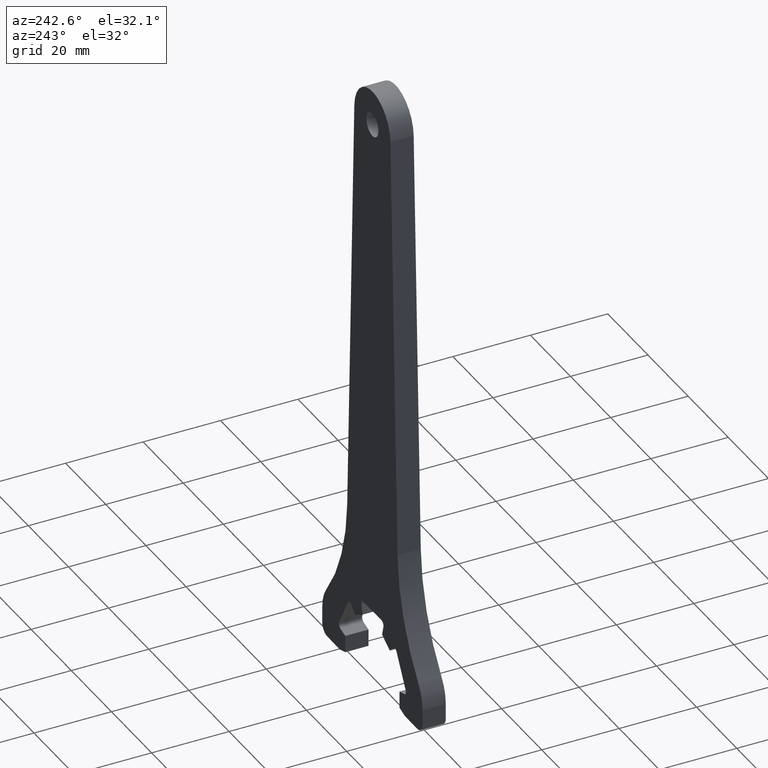
[diagram: clean part render]
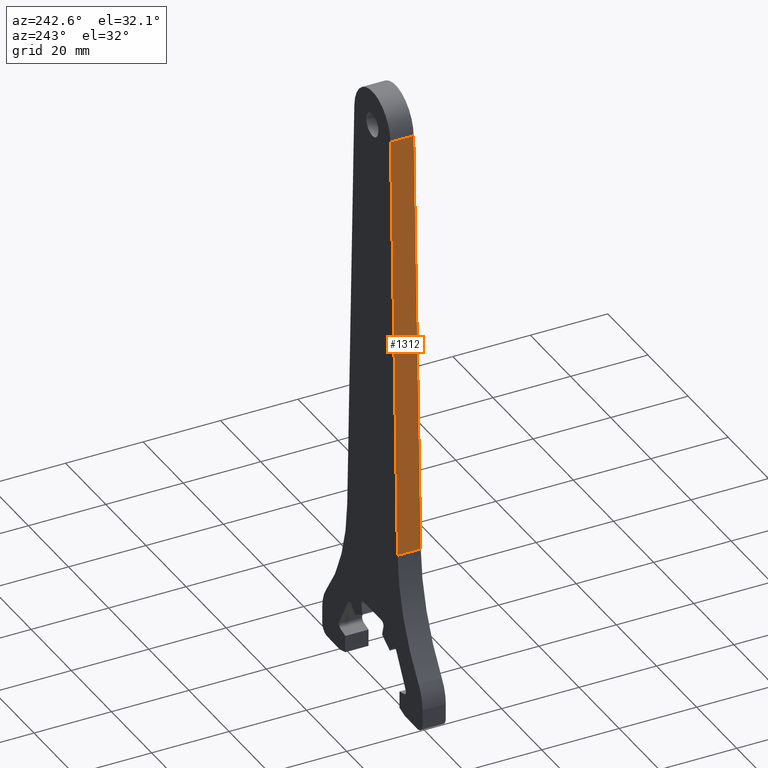
[diagram: same view with one face highlighted and labeled with its STEP entity id]
A machine part, auxiliary view. The second image highlights one B-rep face of the part: STEP entity #1312.
In plain terms, the highlighted planar face has unit normal (-0.9995, 0, 0.0321).
Its self-contained STEP definition (entity closure, byte-faithful):
#42 = VECTOR ( 'NONE', #1088, 1000.000000000000000 ) ;
#69 = PLANE ( 'NONE',  #291 ) ;
#98 = FACE_OUTER_BOUND ( 'NONE', #373, .T. ) ;
#129 = DIRECTION ( 'NONE',  ( -0.03213000920477214500, 0.0000000000000000000, -0.9994836979703576300 ) ) ;
#151 = DIRECTION ( 'NONE',  ( -0.0000000000000000000, -1.000000000000000000, -0.0000000000000000000 ) ) ;
#211 = EDGE_CURVE ( 'NONE', #937, #647, #324, .T. ) ;
#223 = EDGE_CURVE ( 'NONE', #647, #734, #1160, .T. ) ;
#249 = CARTESIAN_POINT ( 'NONE',  ( -12.52581510148198500, 3.000000000000000000, 38.53197360864291500 ) ) ;
#291 = AXIS2_PLACEMENT_3D ( 'NONE', #883, #482, #1198 ) ;
#324 = LINE ( 'NONE', #784, #42 ) ;
#373 = EDGE_LOOP ( 'NONE', ( #960, #830, #638, #1123 ) ) ;
#467 = CARTESIAN_POINT ( 'NONE',  ( -13.75027770088628600, -3.000000000000000000, 0.4420247673822012000 ) ) ;
#482 = DIRECTION ( 'NONE',  ( -0.9994836979703577400, 0.0000000000000000000, 0.03213000920477215200 ) ) ;
#524 = CARTESIAN_POINT ( 'NONE',  ( -13.75027770088628600, 3.000000000000000000, 0.4420247673822012000 ) ) ;
#585 = VECTOR ( 'NONE', #875, 1000.000000000000100 ) ;
#638 = ORIENTED_EDGE ( 'NONE', *, *, #1034, .T. ) ;
#647 = VERTEX_POINT ( 'NONE', #1097 ) ;
#648 = CARTESIAN_POINT ( 'NONE',  ( -12.52581510148198500, -3.000000000000000000, 38.53197360864291500 ) ) ;
#654 = CARTESIAN_POINT ( 'NONE',  ( -12.52581510148198500, 3.000000000000000000, 38.53197360864291500 ) ) ;
#734 = VERTEX_POINT ( 'NONE', #648 ) ;
#770 = VERTEX_POINT ( 'NONE', #654 ) ;
#784 = CARTESIAN_POINT ( 'NONE',  ( -8.995353281733120100, 3.000000000000000000, 148.3557527634169700 ) ) ;
#830 = ORIENTED_EDGE ( 'NONE', *, *, #211, .F. ) ;
#875 = DIRECTION ( 'NONE',  ( -0.03213000920477214500, 0.0000000000000000000, -0.9994836979703576300 ) ) ;
#883 = CARTESIAN_POINT ( 'NONE',  ( -13.75027770088628600, 3.000000000000000000, 0.4420247673822012000 ) ) ;
#912 = VECTOR ( 'NONE', #151, 1000.000000000000000 ) ;
#937 = VERTEX_POINT ( 'NONE', #1007 ) ;
#960 = ORIENTED_EDGE ( 'NONE', *, *, #223, .F. ) ;
#1007 = CARTESIAN_POINT ( 'NONE',  ( -8.995353281733120100, 3.000000000000000000, 148.3557527634169700 ) ) ;
#1034 = EDGE_CURVE ( 'NONE', #937, #770, #1321, .T. ) ;
#1040 = VECTOR ( 'NONE', #129, 1000.000000000000100 ) ;
#1088 = DIRECTION ( 'NONE',  ( -0.0000000000000000000, -1.000000000000000000, -0.0000000000000000000 ) ) ;
#1097 = CARTESIAN_POINT ( 'NONE',  ( -8.995353281733120100, -3.000000000000000000, 148.3557527634169700 ) ) ;
#1123 = ORIENTED_EDGE ( 'NONE', *, *, #1151, .T. ) ;
#1151 = EDGE_CURVE ( 'NONE', #770, #734, #1177, .T. ) ;
#1160 = LINE ( 'NONE', #467, #585 ) ;
#1177 = LINE ( 'NONE', #249, #912 ) ;
#1198 = DIRECTION ( 'NONE',  ( 0.03213000920477214500, 0.0000000000000000000, 0.9994836979703576300 ) ) ;
#1312 = ADVANCED_FACE ( 'NONE', ( #98 ), #69, .T. ) ;
#1321 = LINE ( 'NONE', #524, #1040 ) ;